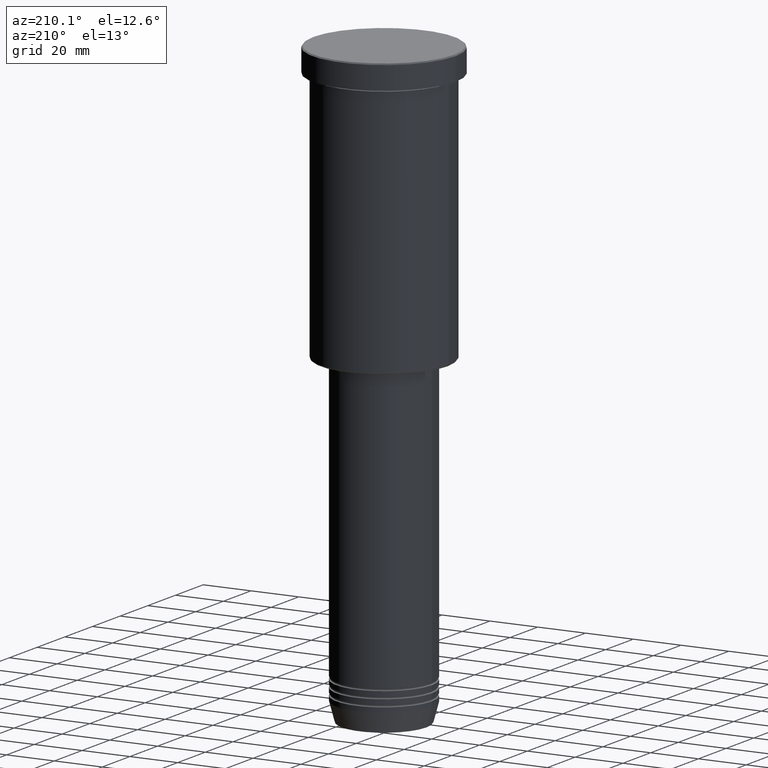
[diagram: clean part render]
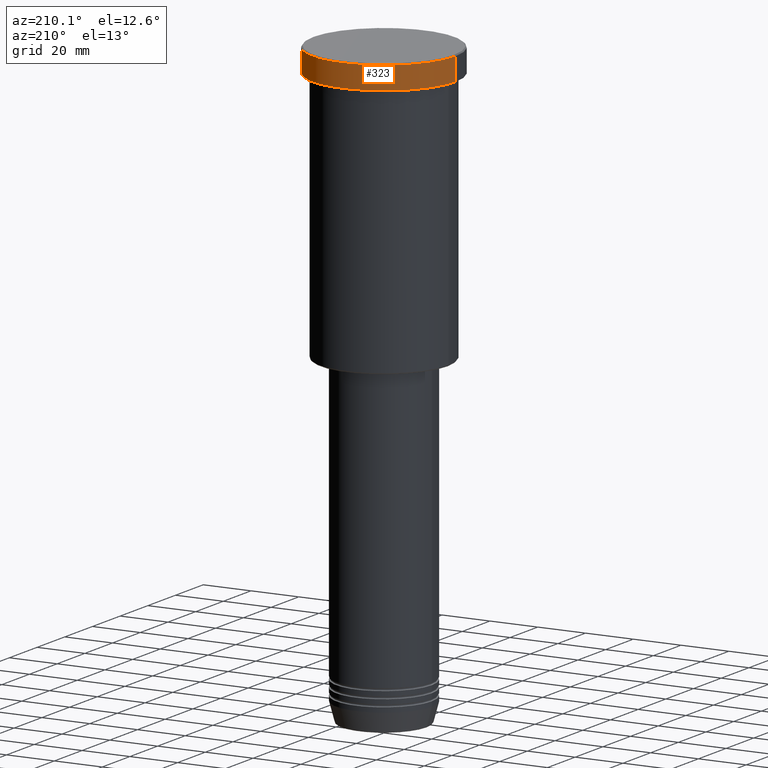
[diagram: same view with one face highlighted and labeled with its STEP entity id]
A machine part, auxiliary view. The second image highlights one B-rep face of the part: STEP entity #323.
In plain terms, the highlighted cylindrical surface (partial cylindrical patch) has radius 30 mm, axis along (-0, -0, 1).
Its self-contained STEP definition (entity closure, byte-faithful):
#7 = CARTESIAN_POINT ( 'NONE',  ( 30.00000000000000000, 0.000000000000000000, 0.000000000000000000 ) ) ;
#24 = CARTESIAN_POINT ( 'NONE',  ( 30.00000000000000000, 0.000000000000000000, -9.999999999999992895 ) ) ;
#31 = CIRCLE ( 'NONE', #739, 30.00000000000000000 ) ;
#80 = DIRECTION ( 'NONE',  ( 1.000000000000000000, 0.000000000000000000, 0.000000000000000000 ) ) ;
#97 = DIRECTION ( 'NONE',  ( 0.000000000000000000, 0.000000000000000000, -1.000000000000000000 ) ) ;
#112 = DIRECTION ( 'NONE',  ( 1.000000000000000000, 0.000000000000000000, 0.000000000000000000 ) ) ;
#122 = CIRCLE ( 'NONE', #394, 30.00000000000000000 ) ;
#130 = ORIENTED_EDGE ( 'NONE', *, *, #1070, .T. ) ;
#148 = VERTEX_POINT ( 'NONE', #751 ) ;
#180 = DIRECTION ( 'NONE',  ( 1.000000000000000000, 0.000000000000000000, 0.000000000000000000 ) ) ;
#210 = EDGE_CURVE ( 'NONE', #791, #630, #816, .T. ) ;
#255 = VECTOR ( 'NONE', #895, 1000.000000000000000 ) ;
#299 = AXIS2_PLACEMENT_3D ( 'NONE', #768, #858, #112 ) ;
#304 = FACE_OUTER_BOUND ( 'NONE', #1025, .T. ) ;
#323 = ADVANCED_FACE ( 'NONE', ( #304 ), #666, .T. ) ;
#346 = VERTEX_POINT ( 'NONE', #934 ) ;
#394 = AXIS2_PLACEMENT_3D ( 'NONE', #898, #97, #80 ) ;
#447 = ORIENTED_EDGE ( 'NONE', *, *, #210, .F. ) ;
#465 = CARTESIAN_POINT ( 'NONE',  ( 0.000000000000000000, 0.000000000000000000, -9.999999999999992895 ) ) ;
#467 = EDGE_CURVE ( 'NONE', #346, #148, #1168, .T. ) ;
#497 = ORIENTED_EDGE ( 'NONE', *, *, #1019, .T. ) ;
#583 = VECTOR ( 'NONE', #727, 1000.000000000000000 ) ;
#630 = VERTEX_POINT ( 'NONE', #992 ) ;
#666 = CYLINDRICAL_SURFACE ( 'NONE', #299, 30.00000000000000000 ) ;
#727 = DIRECTION ( 'NONE',  ( -0.000000000000000000, -0.000000000000000000, 1.000000000000000000 ) ) ;
#739 = AXIS2_PLACEMENT_3D ( 'NONE', #465, #999, #180 ) ;
#751 = CARTESIAN_POINT ( 'NONE',  ( -30.00000000000000000, 3.673940397442059178E-15, -0.5000000000000073275 ) ) ;
#768 = CARTESIAN_POINT ( 'NONE',  ( 0.000000000000000000, 0.000000000000000000, 0.000000000000000000 ) ) ;
#791 = VERTEX_POINT ( 'NONE', #24 ) ;
#816 = LINE ( 'NONE', #7, #583 ) ;
#858 = DIRECTION ( 'NONE',  ( -0.000000000000000000, -0.000000000000000000, 1.000000000000000000 ) ) ;
#891 = CARTESIAN_POINT ( 'NONE',  ( -30.00000000000000000, 3.673940397442059178E-15, 0.000000000000000000 ) ) ;
#895 = DIRECTION ( 'NONE',  ( -0.000000000000000000, -0.000000000000000000, 1.000000000000000000 ) ) ;
#898 = CARTESIAN_POINT ( 'NONE',  ( 0.000000000000000000, 0.000000000000000000, -0.5000000000000073275 ) ) ;
#934 = CARTESIAN_POINT ( 'NONE',  ( -30.00000000000000000, 3.673940397442059178E-15, -9.999999999999992895 ) ) ;
#992 = CARTESIAN_POINT ( 'NONE',  ( 30.00000000000000000, 0.000000000000000000, -0.5000000000000073275 ) ) ;
#997 = ORIENTED_EDGE ( 'NONE', *, *, #467, .T. ) ;
#999 = DIRECTION ( 'NONE',  ( -0.000000000000000000, -0.000000000000000000, 1.000000000000000000 ) ) ;
#1019 = EDGE_CURVE ( 'NONE', #791, #346, #31, .T. ) ;
#1025 = EDGE_LOOP ( 'NONE', ( #497, #997, #130, #447 ) ) ;
#1070 = EDGE_CURVE ( 'NONE', #148, #630, #122, .T. ) ;
#1168 = LINE ( 'NONE', #891, #255 ) ;